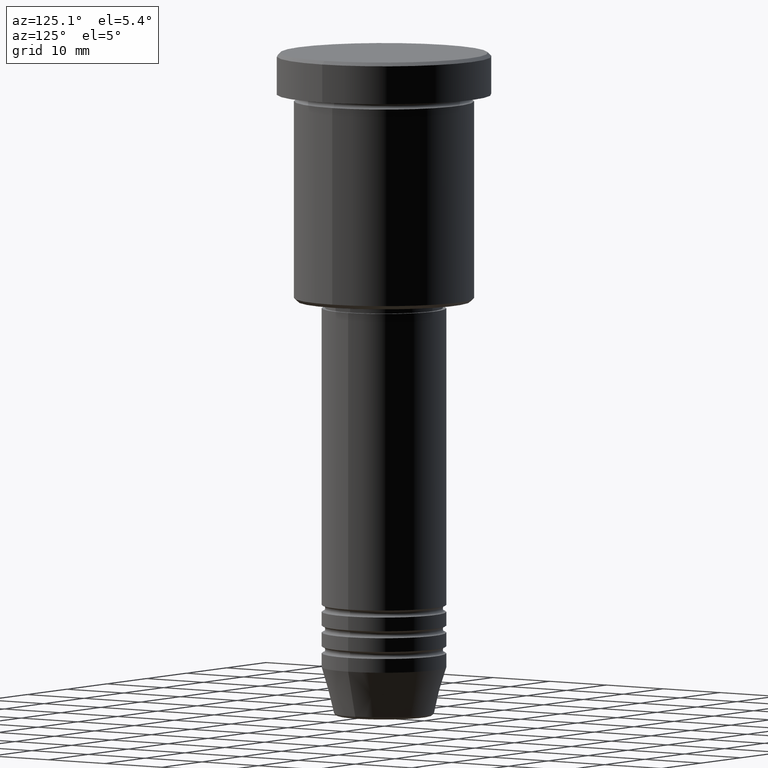
[diagram: clean part render]
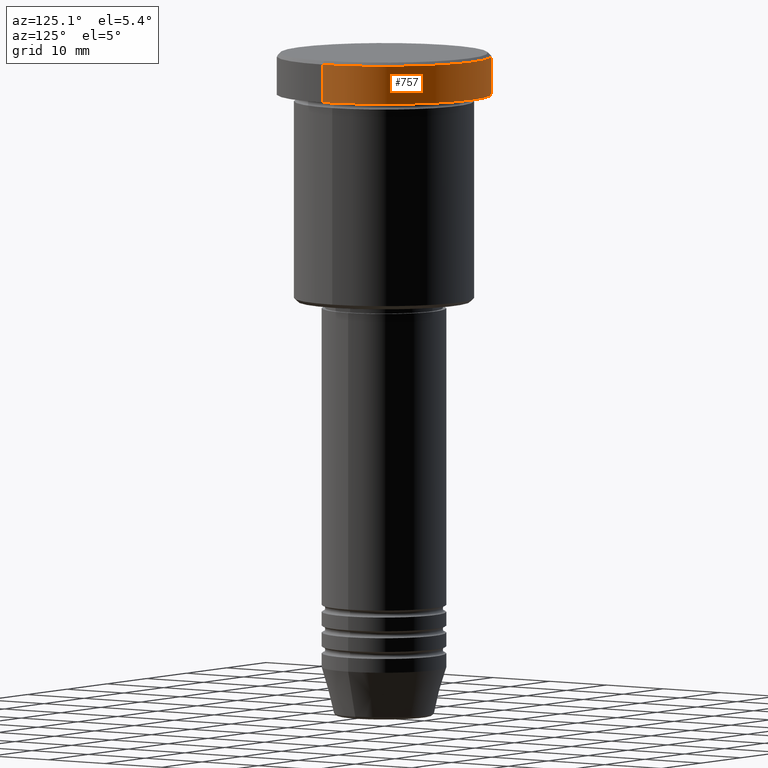
[diagram: same view with one face highlighted and labeled with its STEP entity id]
A machine part, auxiliary view. The second image highlights one B-rep face of the part: STEP entity #757.
In plain terms, the highlighted cylindrical surface (partial cylindrical patch) has radius 15.5 mm, axis along (-0, -0, 1).
Its self-contained STEP definition (entity closure, byte-faithful):
#31 = VECTOR ( 'NONE', #811, 1000.000000000000000 ) ;
#78 = EDGE_LOOP ( 'NONE', ( #682, #854, #422, #1172 ) ) ;
#117 = CARTESIAN_POINT ( 'NONE',  ( -15.50000000000000000, 1.898202538678397557E-15, -0.4999999999999987232 ) ) ;
#134 = CARTESIAN_POINT ( 'NONE',  ( 0.000000000000000000, 0.000000000000000000, -5.999999999999995559 ) ) ;
#161 = AXIS2_PLACEMENT_3D ( 'NONE', #134, #416, #773 ) ;
#169 = DIRECTION ( 'NONE',  ( -0.000000000000000000, -0.000000000000000000, 1.000000000000000000 ) ) ;
#212 = EDGE_CURVE ( 'NONE', #819, #483, #1177, .T. ) ;
#243 = VERTEX_POINT ( 'NONE', #117 ) ;
#253 = CARTESIAN_POINT ( 'NONE',  ( -15.50000000000000000, 1.898202538678397557E-15, 0.000000000000000000 ) ) ;
#363 = AXIS2_PLACEMENT_3D ( 'NONE', #1052, #394, #983 ) ;
#394 = DIRECTION ( 'NONE',  ( -0.000000000000000000, -0.000000000000000000, 1.000000000000000000 ) ) ;
#416 = DIRECTION ( 'NONE',  ( -0.000000000000000000, -0.000000000000000000, 1.000000000000000000 ) ) ;
#422 = ORIENTED_EDGE ( 'NONE', *, *, #518, .T. ) ;
#453 = CARTESIAN_POINT ( 'NONE',  ( 0.000000000000000000, 0.000000000000000000, -0.4999999999999987232 ) ) ;
#483 = VERTEX_POINT ( 'NONE', #710 ) ;
#484 = CYLINDRICAL_SURFACE ( 'NONE', #363, 15.50000000000000000 ) ;
#491 = VECTOR ( 'NONE', #169, 1000.000000000000000 ) ;
#518 = EDGE_CURVE ( 'NONE', #243, #1133, #1124, .T. ) ;
#578 = CARTESIAN_POINT ( 'NONE',  ( 15.50000000000000000, 0.000000000000000000, -5.999999999999995559 ) ) ;
#623 = LINE ( 'NONE', #253, #491 ) ;
#642 = DIRECTION ( 'NONE',  ( 1.000000000000000000, 0.000000000000000000, 0.000000000000000000 ) ) ;
#682 = ORIENTED_EDGE ( 'NONE', *, *, #212, .T. ) ;
#703 = FACE_OUTER_BOUND ( 'NONE', #78, .T. ) ;
#710 = CARTESIAN_POINT ( 'NONE',  ( -15.50000000000000000, 1.898202538678397557E-15, -5.999999999999995559 ) ) ;
#724 = CARTESIAN_POINT ( 'NONE',  ( 15.50000000000000000, 0.000000000000000000, 0.000000000000000000 ) ) ;
#757 = ADVANCED_FACE ( 'NONE', ( #703 ), #484, .T. ) ;
#773 = DIRECTION ( 'NONE',  ( 1.000000000000000000, 0.000000000000000000, 0.000000000000000000 ) ) ;
#796 = CARTESIAN_POINT ( 'NONE',  ( 15.50000000000000000, 0.000000000000000000, -0.4999999999999987232 ) ) ;
#811 = DIRECTION ( 'NONE',  ( -0.000000000000000000, -0.000000000000000000, 1.000000000000000000 ) ) ;
#819 = VERTEX_POINT ( 'NONE', #578 ) ;
#853 = EDGE_CURVE ( 'NONE', #819, #1133, #1167, .T. ) ;
#854 = ORIENTED_EDGE ( 'NONE', *, *, #918, .T. ) ;
#859 = AXIS2_PLACEMENT_3D ( 'NONE', #453, #1003, #642 ) ;
#918 = EDGE_CURVE ( 'NONE', #483, #243, #623, .T. ) ;
#983 = DIRECTION ( 'NONE',  ( 1.000000000000000000, 0.000000000000000000, 0.000000000000000000 ) ) ;
#1003 = DIRECTION ( 'NONE',  ( 0.000000000000000000, 0.000000000000000000, -1.000000000000000000 ) ) ;
#1052 = CARTESIAN_POINT ( 'NONE',  ( 0.000000000000000000, 0.000000000000000000, 0.000000000000000000 ) ) ;
#1124 = CIRCLE ( 'NONE', #859, 15.50000000000000000 ) ;
#1133 = VERTEX_POINT ( 'NONE', #796 ) ;
#1167 = LINE ( 'NONE', #724, #31 ) ;
#1172 = ORIENTED_EDGE ( 'NONE', *, *, #853, .F. ) ;
#1177 = CIRCLE ( 'NONE', #161, 15.50000000000000000 ) ;